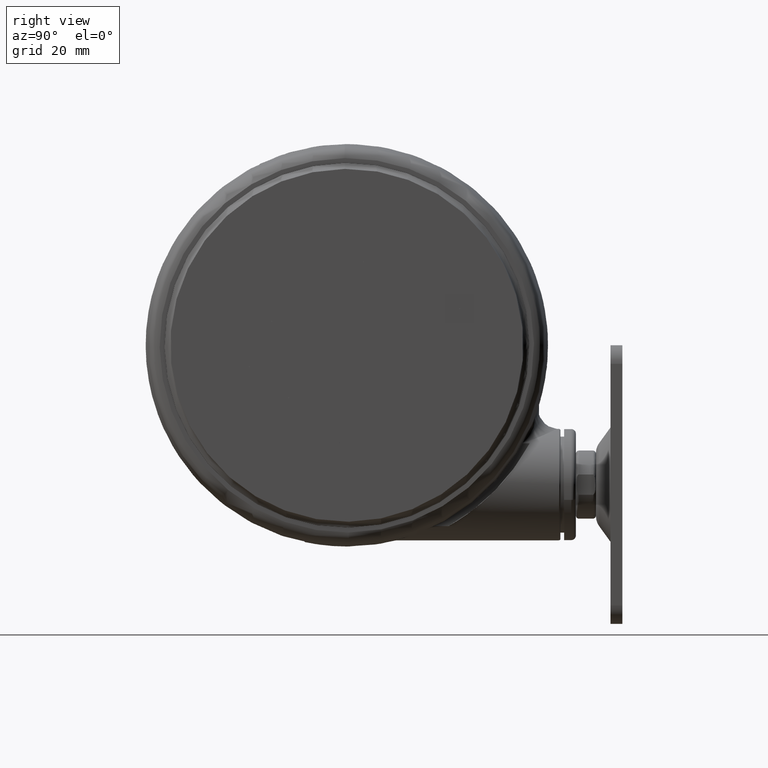
[diagram: clean part render]
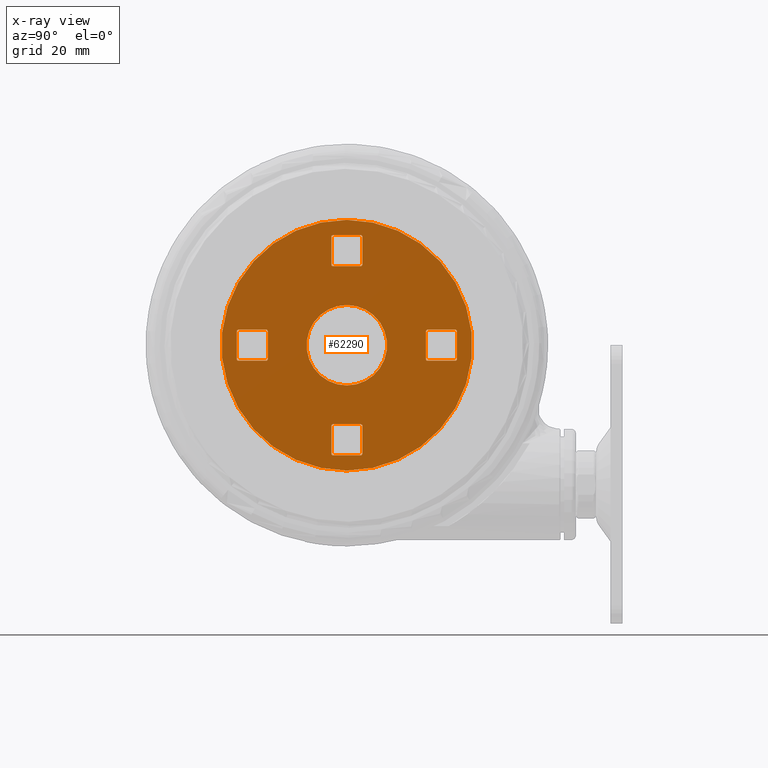
[diagram: x-ray — body ghosted, one internal face saturated and labeled with its STEP entity id]
A machine part, right view, then the same camera in x-ray: the body is ghosted and one INTERNAL B-rep face — a face not visible from any outside direction — is saturated and labeled: STEP entity #62290.
In plain terms, the highlighted planar face has unit normal (1, 0, 0).
Its self-contained STEP definition (entity closure, byte-faithful):
#5 = CARTESIAN_POINT ( 'NONE',  ( -25.49500699571689600, 5.273245517549115700, -64.40000000000011900 ) ) ;
#394 = EDGE_CURVE ( 'NONE', #59196, #18796, #28980, .T. ) ;
#671 = DIRECTION ( 'NONE',  ( 0.9999426917550610100, -0.01070575572499102300, 0.0000000000000000000 ) ) ;
#716 = CARTESIAN_POINT ( 'NONE',  ( -35.49443391326749300, 5.380303074799136300, -64.40000000000011900 ) ) ;
#886 = CARTESIAN_POINT ( 'NONE',  ( 25.60206455296672300, 4.726181400001715700, -64.40000000000011900 ) ) ;
#959 = CARTESIAN_POINT ( 'NONE',  ( -35.09616724677738400, -4.124505374736449100, -64.40000000000011900 ) ) ;
#977 = DIRECTION ( 'NONE',  ( 0.9999426917550609000, -0.01070575572499099900, 0.0000000000000000000 ) ) ;
#1031 = ORIENTED_EDGE ( 'NONE', *, *, #56039, .T. ) ;
#1229 = CARTESIAN_POINT ( 'NONE',  ( -12.99925499281583400, 0.1391748244249053900, -64.40000000000011900 ) ) ;
#1230 = FACE_OUTER_BOUND ( 'NONE', #16724, .T. ) ;
#1296 = AXIS2_PLACEMENT_3D ( 'NONE', #37284, #2865, #43066 ) ;
#1297 = DIRECTION ( 'NONE',  ( -0.0000000000000000000, -0.0000000000000000000, -1.000000000000000000 ) ) ;
#2328 = ORIENTED_EDGE ( 'NONE', *, *, #38204, .F. ) ;
#2360 = CARTESIAN_POINT ( 'NONE',  ( -4.773274171671336500, -25.50035987357933100, -64.40000000000011900 ) ) ;
#2778 = VECTOR ( 'NONE', #67881, 1000.000000000000100 ) ;
#2865 = DIRECTION ( 'NONE',  ( 0.0000000000000000000, 0.0000000000000000000, 1.000000000000000000 ) ) ;
#2921 = LINE ( 'NONE', #50167, #47029 ) ;
#2969 = LINE ( 'NONE', #66662, #62410 ) ;
#3023 = FACE_BOUND ( 'NONE', #39246, .T. ) ;
#3549 = VERTEX_POINT ( 'NONE', #42418 ) ;
#3570 = EDGE_CURVE ( 'NONE', #29897, #55767, #55619, .T. ) ;
#3758 = CARTESIAN_POINT ( 'NONE',  ( 4.619123842751833700, -35.60149147051734500, -64.40000000000011900 ) ) ;
#3989 = LINE ( 'NONE', #61160, #32695 ) ;
#4021 = EDGE_LOOP ( 'NONE', ( #68154, #36903, #67220, #63889, #62978, #7505, #74054, #6029 ) ) ;
#4228 = DIRECTION ( 'NONE',  ( 0.9999426917550610100, -0.01070575572499100000, 0.0000000000000000000 ) ) ;
#4249 = EDGE_CURVE ( 'NONE', #29153, #43707, #31130, .T. ) ;
#4277 = CARTESIAN_POINT ( 'NONE',  ( -25.99497834159442500, 5.278598395411621300, -64.40000000000011900 ) ) ;
#5104 = VERTEX_POINT ( 'NONE', #46723 ) ;
#5221 = EDGE_CURVE ( 'NONE', #21125, #14698, #46332, .T. ) ;
#5729 = DIRECTION ( 'NONE',  ( 0.9999426917550609000, -0.01070575572499100000, 0.0000000000000000000 ) ) ;
#5759 = EDGE_CURVE ( 'NONE', #63019, #5104, #58030, .T. ) ;
#5810 = DIRECTION ( 'NONE',  ( -0.01070575572500147300, -0.9999426917550607900, 0.0000000000000000000 ) ) ;
#5994 = ORIENTED_EDGE ( 'NONE', *, *, #74237, .T. ) ;
#6029 = ORIENTED_EDGE ( 'NONE', *, *, #70926, .T. ) ;
#6523 = PLANE ( 'NONE',  #32958 ) ;
#6620 = DIRECTION ( 'NONE',  ( 0.9999426917550609000, -0.01070575572499099900, 0.0000000000000000000 ) ) ;
#6635 = CARTESIAN_POINT ( 'NONE',  ( 34.99446256738988800, -5.374950196936349100, -64.40000000000011900 ) ) ;
#6702 = CARTESIAN_POINT ( 'NONE',  ( -5.374950196936281600, -34.99446256738991000, -64.40000000000011900 ) ) ;
#6761 = DIRECTION ( 'NONE',  ( 0.9999426917550610100, -0.01070575572499102300, 0.0000000000000000000 ) ) ;
#7174 = ORIENTED_EDGE ( 'NONE', *, *, #30714, .T. ) ;
#7412 = CIRCLE ( 'NONE', #17734, 0.4999999999999993300 ) ;
#7505 = ORIENTED_EDGE ( 'NONE', *, *, #34698, .T. ) ;
#7651 = AXIS2_PLACEMENT_3D ( 'NONE', #73168, #38621, #4228 ) ;
#8510 = CARTESIAN_POINT ( 'NONE',  ( 25.99497834159434000, -5.278598395411399300, -64.40000000000011900 ) ) ;
#8828 = EDGE_CURVE ( 'NONE', #12932, #14698, #56397, .T. ) ;
#9123 = DIRECTION ( 'NONE',  ( 0.01070575572499099900, 0.9999426917550609000, 0.0000000000000000000 ) ) ;
#9268 = VERTEX_POINT ( 'NONE', #1229 ) ;
#9381 = CARTESIAN_POINT ( 'NONE',  ( 4.226210054124212700, -25.59671167510424900, -64.40000000000011900 ) ) ;
#9806 = CARTESIAN_POINT ( 'NONE',  ( 4.778627049533748000, 26.00033121945690300, -64.40000000000011900 ) ) ;
#9955 = EDGE_CURVE ( 'NONE', #74697, #42393, #16603, .T. ) ;
#10168 = VECTOR ( 'NONE', #42824, 1000.000000000000100 ) ;
#10303 = ORIENTED_EDGE ( 'NONE', *, *, #394, .T. ) ;
#12079 = AXIS2_PLACEMENT_3D ( 'NONE', #63368, #28841, #69153 ) ;
#12932 = VERTEX_POINT ( 'NONE', #26979 ) ;
#13098 = VERTEX_POINT ( 'NONE', #6635 ) ;
#13621 = EDGE_CURVE ( 'NONE', #44310, #60854, #24417, .T. ) ;
#14039 = EDGE_CURVE ( 'NONE', #55584, #58517, #35149, .T. ) ;
#14248 = EDGE_CURVE ( 'NONE', #67438, #22301, #66677, .T. ) ;
#14453 = CIRCLE ( 'NONE', #52341, 0.5000000000000002200 ) ;
#14584 = CARTESIAN_POINT ( 'NONE',  ( 25.50035987357930600, -4.773274171671364000, -64.40000000000011900 ) ) ;
#14618 = DIRECTION ( 'NONE',  ( 0.0000000000000000000, 0.0000000000000000000, 1.000000000000000000 ) ) ;
#14698 = VERTEX_POINT ( 'NONE', #52663 ) ;
#14699 = EDGE_CURVE ( 'NONE', #32011, #5104, #66610, .T. ) ;
#14953 = DIRECTION ( 'NONE',  ( 0.0000000000000000000, 0.0000000000000000000, 1.000000000000000000 ) ) ;
#15341 = AXIS2_PLACEMENT_3D ( 'NONE', #74660, #40163, #5729 ) ;
#15552 = CIRCLE ( 'NONE', #29408, 0.4999999999999993300 ) ;
#15607 = DIRECTION ( 'NONE',  ( 0.9999426917550610100, -0.01070575572498926900, 0.0000000000000000000 ) ) ;
#16603 = CIRCLE ( 'NONE', #38584, 0.4999999999999993300 ) ;
#16724 = EDGE_LOOP ( 'NONE', ( #40928, #52136 ) ) ;
#17380 = AXIS2_PLACEMENT_3D ( 'NONE', #49062, #14618, #54879 ) ;
#17734 = AXIS2_PLACEMENT_3D ( 'NONE', #57463, #22943, #63224 ) ;
#18079 = DIRECTION ( 'NONE',  ( 0.0000000000000000000, 0.0000000000000000000, 1.000000000000000000 ) ) ;
#18166 = DIRECTION ( 'NONE',  ( 0.0000000000000000000, 0.0000000000000000000, 1.000000000000000000 ) ) ;
#18673 = AXIS2_PLACEMENT_3D ( 'NONE', #35687, #1297, #41521 ) ;
#18737 = DIRECTION ( 'NONE',  ( 0.0000000000000000000, 0.0000000000000000000, 1.000000000000000000 ) ) ;
#18775 = CARTESIAN_POINT ( 'NONE',  ( -25.59671167510430600, -4.226210054123964000, -64.40000000000011900 ) ) ;
#18796 = VERTEX_POINT ( 'NONE', #45296 ) ;
#19090 = AXIS2_PLACEMENT_3D ( 'NONE', #54047, #19540, #59846 ) ;
#19540 = DIRECTION ( 'NONE',  ( 0.0000000000000000000, 0.0000000000000000000, 1.000000000000000000 ) ) ;
#20104 = CARTESIAN_POINT ( 'NONE',  ( -5.278598395411362000, -25.99497834159436500, -64.40000000000011900 ) ) ;
#20848 = DIRECTION ( 'NONE',  ( -0.9999426917550609000, 0.01070575572499099900, 0.0000000000000000000 ) ) ;
#21125 = VERTEX_POINT ( 'NONE', #46734 ) ;
#21272 = VERTEX_POINT ( 'NONE', #59844 ) ;
#21744 = VERTEX_POINT ( 'NONE', #2360 ) ;
#21833 = CARTESIAN_POINT ( 'NONE',  ( -5.380303074798776600, -35.49443391326744300, -64.40000000000011900 ) ) ;
#21913 = ORIENTED_EDGE ( 'NONE', *, *, #8828, .T. ) ;
#21914 = ORIENTED_EDGE ( 'NONE', *, *, #42790, .T. ) ;
#22188 = EDGE_CURVE ( 'NONE', #41753, #28172, #72011, .T. ) ;
#22294 = DIRECTION ( 'NONE',  ( 0.0000000000000000000, 0.0000000000000000000, 1.000000000000000000 ) ) ;
#22301 = VERTEX_POINT ( 'NONE', #54614 ) ;
#22480 = DIRECTION ( 'NONE',  ( 0.0000000000000000000, 0.0000000000000000000, 1.000000000000000000 ) ) ;
#22604 = EDGE_CURVE ( 'NONE', #32011, #50476, #62053, .T. ) ;
#22943 = DIRECTION ( 'NONE',  ( 0.0000000000000000000, 0.0000000000000000000, 1.000000000000000000 ) ) ;
#23163 = AXIS2_PLACEMENT_3D ( 'NONE', #9806, #50044, #15607 ) ;
#23173 = ORIENTED_EDGE ( 'NONE', *, *, #5221, .F. ) ;
#23465 = CARTESIAN_POINT ( 'NONE',  ( -4.778627049533831400, -26.00033121945686100, -64.40000000000011900 ) ) ;
#23856 = ORIENTED_EDGE ( 'NONE', *, *, #14699, .F. ) ;
#24357 = EDGE_CURVE ( 'NONE', #60472, #67828, #37422, .T. ) ;
#24417 = LINE ( 'NONE', #5, #55076 ) ;
#24495 = VECTOR ( 'NONE', #20848, 1000.000000000000100 ) ;
#24928 = ORIENTED_EDGE ( 'NONE', *, *, #55734, .F. ) ;
#24940 = VECTOR ( 'NONE', #65585, 1000.000000000000100 ) ;
#25307 = CARTESIAN_POINT ( 'NONE',  ( 5.273245517548783600, 25.49500699571687800, -64.40000000000011900 ) ) ;
#26021 = VECTOR ( 'NONE', #35289, 1000.000000000000100 ) ;
#26080 = AXIS2_PLACEMENT_3D ( 'NONE', #31140, #71476, #36921 ) ;
#26086 = ORIENTED_EDGE ( 'NONE', *, *, #28663, .F. ) ;
#26190 = CARTESIAN_POINT ( 'NONE',  ( -25.60206455296680500, -4.726181400001494600, -64.40000000000011900 ) ) ;
#26384 = DIRECTION ( 'NONE',  ( 0.0000000000000000000, 0.0000000000000000000, 1.000000000000000000 ) ) ;
#26979 = CARTESIAN_POINT ( 'NONE',  ( -34.99446256738996700, 5.374950196936630700, -64.40000000000011900 ) ) ;
#27447 = EDGE_CURVE ( 'NONE', #13098, #40952, #65538, .T. ) ;
#28172 = VERTEX_POINT ( 'NONE', #74105 ) ;
#28575 = ORIENTED_EDGE ( 'NONE', *, *, #3570, .F. ) ;
#28663 = EDGE_CURVE ( 'NONE', #59196, #40952, #60894, .T. ) ;
#28768 = ORIENTED_EDGE ( 'NONE', *, *, #64599, .F. ) ;
#28841 = DIRECTION ( 'NONE',  ( 0.0000000000000000000, 0.0000000000000000000, 1.000000000000000000 ) ) ;
#28980 = CIRCLE ( 'NONE', #51092, 0.4999999999999993300 ) ;
#29153 = VERTEX_POINT ( 'NONE', #49248 ) ;
#29239 = DIRECTION ( 'NONE',  ( 0.9999426917550610100, -0.01070575572498926900, 0.0000000000000000000 ) ) ;
#29401 = EDGE_CURVE ( 'NONE', #9268, #66083, #48155, .T. ) ;
#29408 = AXIS2_PLACEMENT_3D ( 'NONE', #959, #41195, #6761 ) ;
#29798 = CIRCLE ( 'NONE', #60553, 0.5000000000000002200 ) ;
#29897 = VERTEX_POINT ( 'NONE', #64265 ) ;
#29981 = FACE_BOUND ( 'NONE', #31315, .T. ) ;
#30638 = EDGE_CURVE ( 'NONE', #3549, #22301, #2969, .T. ) ;
#30714 = EDGE_CURVE ( 'NONE', #29897, #33648, #60613, .T. ) ;
#30956 = EDGE_CURVE ( 'NONE', #21125, #43707, #15552, .T. ) ;
#31130 = LINE ( 'NONE', #26190, #42830 ) ;
#31140 = CARTESIAN_POINT ( 'NONE',  ( 26.00033121945683600, -4.778627049533868700, -64.40000000000011900 ) ) ;
#31315 = EDGE_LOOP ( 'NONE', ( #21914, #55929 ) ) ;
#31641 = AXIS2_PLACEMENT_3D ( 'NONE', #53240, #18737, #59052 ) ;
#31764 = FACE_BOUND ( 'NONE', #53803, .T. ) ;
#31989 = VECTOR ( 'NONE', #50336, 1000.000000000000100 ) ;
#32011 = VERTEX_POINT ( 'NONE', #34175 ) ;
#32231 = CARTESIAN_POINT ( 'NONE',  ( 25.49500699571681000, -5.273245517548894600, -64.40000000000011900 ) ) ;
#32501 = CARTESIAN_POINT ( 'NONE',  ( 26.09668302098175700, 4.220857176261690200, -64.40000000000011900 ) ) ;
#32695 = VECTOR ( 'NONE', #66923, 1000.000000000000100 ) ;
#32808 = EDGE_CURVE ( 'NONE', #74697, #18796, #41368, .T. ) ;
#32958 = AXIS2_PLACEMENT_3D ( 'NONE', #35366, #18079, #977 ) ;
#33562 = FACE_BOUND ( 'NONE', #45459, .T. ) ;
#33611 = ORIENTED_EDGE ( 'NONE', *, *, #73131, .T. ) ;
#33619 = CARTESIAN_POINT ( 'NONE',  ( 5.278598395411279400, 25.99497834159440800, -64.40000000000011900 ) ) ;
#33648 = VERTEX_POINT ( 'NONE', #33619 ) ;
#34175 = CARTESIAN_POINT ( 'NONE',  ( -4.119152496874386700, 35.59613859265489600, -64.40000000000011900 ) ) ;
#34698 = EDGE_CURVE ( 'NONE', #3549, #49949, #29798, .T. ) ;
#35058 = DIRECTION ( 'NONE',  ( 0.0000000000000000000, 0.0000000000000000000, 1.000000000000000000 ) ) ;
#35149 = LINE ( 'NONE', #21833, #2778 ) ;
#35233 = VECTOR ( 'NONE', #38034, 1000.000000000000100 ) ;
#35289 = DIRECTION ( 'NONE',  ( 0.9999426917550609000, -0.01070575572499449200, -0.0000000000000000000 ) ) ;
#35366 = CARTESIAN_POINT ( 'NONE',  ( 0.5781108091494724400, 53.99690535477331100, -64.40000000000011900 ) ) ;
#35635 = CARTESIAN_POINT ( 'NONE',  ( -25.50035987357938800, 4.773274171671585200, -64.40000000000011900 ) ) ;
#35687 = CARTESIAN_POINT ( 'NONE',  ( -4.163336342344337000E-014, 2.081668171172168500E-014, -64.40000000000011900 ) ) ;
#36903 = ORIENTED_EDGE ( 'NONE', *, *, #53829, .T. ) ;
#36921 = DIRECTION ( 'NONE',  ( 0.9999426917550610100, -0.01070575572499102300, 0.0000000000000000000 ) ) ;
#37281 = CARTESIAN_POINT ( 'NONE',  ( -4.226210054124296200, 25.59671167510428800, -64.40000000000011900 ) ) ;
#37284 = CARTESIAN_POINT ( 'NONE',  ( 4.874978851058667600, 34.99981544525244500, -64.40000000000011900 ) ) ;
#37373 = CARTESIAN_POINT ( 'NONE',  ( -35.60149147051740900, -4.619123842751483800, -64.40000000000011900 ) ) ;
#37422 = CIRCLE ( 'NONE', #26080, 0.4999999999999993300 ) ;
#37620 = ORIENTED_EDGE ( 'NONE', *, *, #24357, .T. ) ;
#38034 = DIRECTION ( 'NONE',  ( 0.01070575572499449200, 0.9999426917550609000, 0.0000000000000000000 ) ) ;
#38204 = EDGE_CURVE ( 'NONE', #38644, #50476, #42791, .T. ) ;
#38302 = DIRECTION ( 'NONE',  ( 0.9999426917550610100, -0.01070575572499102300, 0.0000000000000000000 ) ) ;
#38584 = AXIS2_PLACEMENT_3D ( 'NONE', #32501, #72835, #38302 ) ;
#38621 = DIRECTION ( 'NONE',  ( -0.0000000000000000000, -0.0000000000000000000, -1.000000000000000000 ) ) ;
#38644 = VERTEX_POINT ( 'NONE', #41974 ) ;
#39246 = EDGE_LOOP ( 'NONE', ( #24928, #61133, #26086, #10303, #58842, #66256, #43265, #37620 ) ) ;
#39344 = VECTOR ( 'NONE', #58348, 1000.000000000000100 ) ;
#40163 = DIRECTION ( 'NONE',  ( 0.0000000000000000000, 0.0000000000000000000, 1.000000000000000000 ) ) ;
#40928 = ORIENTED_EDGE ( 'NONE', *, *, #22188, .T. ) ;
#40952 = VERTEX_POINT ( 'NONE', #52307 ) ;
#41195 = DIRECTION ( 'NONE',  ( 0.0000000000000000000, 0.0000000000000000000, 1.000000000000000000 ) ) ;
#41368 = LINE ( 'NONE', #886, #26021 ) ;
#41521 = DIRECTION ( 'NONE',  ( 0.9999426917550610100, -0.01070575572499100000, 0.0000000000000000000 ) ) ;
#41753 = VERTEX_POINT ( 'NONE', #60231 ) ;
#41778 = LINE ( 'NONE', #65763, #10168 ) ;
#41974 = CARTESIAN_POINT ( 'NONE',  ( -4.720828522139331800, 26.10203589884431400, -64.40000000000011900 ) ) ;
#42393 = VERTEX_POINT ( 'NONE', #49297 ) ;
#42418 = CARTESIAN_POINT ( 'NONE',  ( 4.720828522139248300, -26.10203589884427100, -64.40000000000011900 ) ) ;
#42790 = EDGE_CURVE ( 'NONE', #66083, #9268, #74011, .T. ) ;
#42791 = LINE ( 'NONE', #49353, #58203 ) ;
#42824 = DIRECTION ( 'NONE',  ( -0.9999426917550609000, 0.01070575572499457900, 0.0000000000000000000 ) ) ;
#42830 = VECTOR ( 'NONE', #55206, 1000.000000000000100 ) ;
#43066 = DIRECTION ( 'NONE',  ( 0.9999426917550610100, -0.01070575572499620800, 0.0000000000000000000 ) ) ;
#43265 = ORIENTED_EDGE ( 'NONE', *, *, #43404, .F. ) ;
#43404 = EDGE_CURVE ( 'NONE', #60472, #42393, #65887, .T. ) ;
#43707 = VERTEX_POINT ( 'NONE', #52159 ) ;
#43923 = ORIENTED_EDGE ( 'NONE', *, *, #5759, .T. ) ;
#44310 = VERTEX_POINT ( 'NONE', #35635 ) ;
#44547 = EDGE_CURVE ( 'NONE', #28172, #41753, #56767, .T. ) ;
#44783 = CARTESIAN_POINT ( 'NONE',  ( 35.60149147051732400, 4.619123842751776900, -64.40000000000011900 ) ) ;
#44845 = CARTESIAN_POINT ( 'NONE',  ( 5.374950196936198100, 34.99446256738995200, -64.40000000000011900 ) ) ;
#45296 = CARTESIAN_POINT ( 'NONE',  ( 35.10152012463979800, 4.624476720614271800, -64.40000000000011900 ) ) ;
#45459 = EDGE_LOOP ( 'NONE', ( #28768, #43923, #23856, #73198, #2328, #5994, #28575, #7174 ) ) ;
#46153 = DIRECTION ( 'NONE',  ( 0.9999426917550610100, -0.01070575572499102300, 0.0000000000000000000 ) ) ;
#46332 = LINE ( 'NONE', #37373, #63480 ) ;
#46723 = CARTESIAN_POINT ( 'NONE',  ( 4.880331728921162500, 35.49978679112997100, -64.40000000000011900 ) ) ;
#46734 = CARTESIAN_POINT ( 'NONE',  ( -35.59613859265491000, -4.119152496873948800, -64.40000000000011900 ) ) ;
#46834 = CARTESIAN_POINT ( 'NONE',  ( -4.619123842751917200, 35.60149147051738800, -64.40000000000011900 ) ) ;
#47029 = VECTOR ( 'NONE', #55999, 1000.000000000000100 ) ;
#47471 = AXIS2_PLACEMENT_3D ( 'NONE', #49393, #14953, #55220 ) ;
#47780 = CIRCLE ( 'NONE', #51781, 0.4999999999999993300 ) ;
#48155 = CIRCLE ( 'NONE', #15341, 13.00000000000000200 ) ;
#49062 = CARTESIAN_POINT ( 'NONE',  ( -34.99981544525246600, 4.874978851059099200, -64.40000000000011900 ) ) ;
#49248 = CARTESIAN_POINT ( 'NONE',  ( -26.10203589884433500, -4.720828522138999600, -64.40000000000011900 ) ) ;
#49297 = CARTESIAN_POINT ( 'NONE',  ( 25.59671167510422800, 4.226210054124180700, -64.40000000000011900 ) ) ;
#49353 = CARTESIAN_POINT ( 'NONE',  ( -4.726181400001826700, 25.60206455296678400, -64.40000000000011900 ) ) ;
#49393 = CARTESIAN_POINT ( 'NONE',  ( -4.874978851058751100, -34.99981544525240200, -64.40000000000011900 ) ) ;
#49428 = CARTESIAN_POINT ( 'NONE',  ( 12.99925499281575200, -0.1391748244248622000, -64.40000000000011900 ) ) ;
#49487 = VECTOR ( 'NONE', #6620, 1000.000000000000100 ) ;
#49541 = DIRECTION ( 'NONE',  ( -0.01070575572499099900, -0.9999426917550609000, 0.0000000000000000000 ) ) ;
#49949 = VERTEX_POINT ( 'NONE', #9381 ) ;
#50044 = DIRECTION ( 'NONE',  ( 0.0000000000000000000, 0.0000000000000000000, 1.000000000000000000 ) ) ;
#50167 = CARTESIAN_POINT ( 'NONE',  ( 5.380303074798694000, 35.49443391326747800, -64.40000000000011900 ) ) ;
#50336 = DIRECTION ( 'NONE',  ( -0.01070575572499449200, -0.9999426917550609000, 0.0000000000000000000 ) ) ;
#50476 = VERTEX_POINT ( 'NONE', #62621 ) ;
#51092 = AXIS2_PLACEMENT_3D ( 'NONE', #70820, #22294, #46153 ) ;
#51781 = AXIS2_PLACEMENT_3D ( 'NONE', #69609, #35058, #671 ) ;
#52136 = ORIENTED_EDGE ( 'NONE', *, *, #44547, .T. ) ;
#52159 = CARTESIAN_POINT ( 'NONE',  ( -35.10152012463987600, -4.624476720613979600, -64.40000000000011900 ) ) ;
#52307 = CARTESIAN_POINT ( 'NONE',  ( 35.49978679112990700, -4.880331728921313500, -64.40000000000011900 ) ) ;
#52341 = AXIS2_PLACEMENT_3D ( 'NONE', #60942, #26384, #66692 ) ;
#52648 = CARTESIAN_POINT ( 'NONE',  ( 4.220857176261717700, -26.09668302098177900, -64.40000000000011900 ) ) ;
#52663 = CARTESIAN_POINT ( 'NONE',  ( -35.49978679112999200, 4.880331728921604800, -64.40000000000011900 ) ) ;
#53240 = CARTESIAN_POINT ( 'NONE',  ( 4.124505374736798100, -35.09616724677732700, -64.40000000000011900 ) ) ;
#53803 = EDGE_LOOP ( 'NONE', ( #68662, #21913, #23173, #65004, #64791, #1031, #58122, #33611 ) ) ;
#53829 = EDGE_CURVE ( 'NONE', #55584, #21272, #60585, .T. ) ;
#54047 = CARTESIAN_POINT ( 'NONE',  ( -4.163336342344337000E-014, 2.081668171172168500E-014, -64.40000000000011900 ) ) ;
#54614 = CARTESIAN_POINT ( 'NONE',  ( 4.624476720614329600, -35.10152012463981900, -64.40000000000011900 ) ) ;
#54703 = LINE ( 'NONE', #716, #39344 ) ;
#54803 = CARTESIAN_POINT ( 'NONE',  ( 26.10203589884425300, 4.720828522139220800, -64.40000000000011900 ) ) ;
#54879 = DIRECTION ( 'NONE',  ( 0.9999426917550610100, -0.01070575572499102300, 0.0000000000000000000 ) ) ;
#55076 = VECTOR ( 'NONE', #5810, 1000.000000000000100 ) ;
#55206 = DIRECTION ( 'NONE',  ( -0.9999426917550607900, 0.01070575572500147300, 0.0000000000000000000 ) ) ;
#55220 = DIRECTION ( 'NONE',  ( 0.9999426917550610100, -0.01070575572499620800, 0.0000000000000000000 ) ) ;
#55584 = VERTEX_POINT ( 'NONE', #6702 ) ;
#55619 = LINE ( 'NONE', #25307, #24940 ) ;
#55734 = EDGE_CURVE ( 'NONE', #13098, #67828, #41778, .T. ) ;
#55767 = VERTEX_POINT ( 'NONE', #37281 ) ;
#55929 = ORIENTED_EDGE ( 'NONE', *, *, #29401, .T. ) ;
#55999 = DIRECTION ( 'NONE',  ( -0.01070575572499108700, -0.9999426917550609000, 0.0000000000000000000 ) ) ;
#56039 = EDGE_CURVE ( 'NONE', #29153, #60854, #7412, .T. ) ;
#56278 = CARTESIAN_POINT ( 'NONE',  ( 35.59613859265482500, 4.119152496874241000, -64.40000000000011900 ) ) ;
#56397 = CIRCLE ( 'NONE', #17380, 0.4999999999999993300 ) ;
#56767 = CIRCLE ( 'NONE', #7651, 40.50000000000000000 ) ;
#56997 = CARTESIAN_POINT ( 'NONE',  ( 34.99981544525238100, -4.874978851058818600, -64.40000000000011900 ) ) ;
#57463 = CARTESIAN_POINT ( 'NONE',  ( -26.09668302098183500, -4.220857176261463700, -64.40000000000011900 ) ) ;
#58030 = CIRCLE ( 'NONE', #1296, 0.5000000000000002200 ) ;
#58122 = ORIENTED_EDGE ( 'NONE', *, *, #13621, .F. ) ;
#58203 = VECTOR ( 'NONE', #9123, 1000.000000000000100 ) ;
#58348 = DIRECTION ( 'NONE',  ( 0.9999426917550607900, -0.01070575572500156000, -0.0000000000000000000 ) ) ;
#58447 = DIRECTION ( 'NONE',  ( 0.9999426917550610100, -0.01070575572498926900, 0.0000000000000000000 ) ) ;
#58517 = VERTEX_POINT ( 'NONE', #20104 ) ;
#58816 = EDGE_CURVE ( 'NONE', #12932, #60584, #54703, .T. ) ;
#58842 = ORIENTED_EDGE ( 'NONE', *, *, #32808, .F. ) ;
#59052 = DIRECTION ( 'NONE',  ( 0.9999426917550610100, -0.01070575572499620800, 0.0000000000000000000 ) ) ;
#59196 = VERTEX_POINT ( 'NONE', #56278 ) ;
#59844 = CARTESIAN_POINT ( 'NONE',  ( -4.880331728921246000, -35.49978679112992800, -64.40000000000011900 ) ) ;
#59846 = DIRECTION ( 'NONE',  ( 0.9999426917550609000, -0.01070575572499100000, 0.0000000000000000000 ) ) ;
#60231 = CARTESIAN_POINT ( 'NONE',  ( 40.49767901607992800, -0.4335831068621147100, -64.40000000000011900 ) ) ;
#60472 = VERTEX_POINT ( 'NONE', #14584 ) ;
#60553 = AXIS2_PLACEMENT_3D ( 'NONE', #52648, #18166, #58447 ) ;
#60584 = VERTEX_POINT ( 'NONE', #4277 ) ;
#60585 = CIRCLE ( 'NONE', #47471, 0.5000000000000002200 ) ;
#60613 = CIRCLE ( 'NONE', #23163, 0.5000000000000002200 ) ;
#60655 = FACE_BOUND ( 'NONE', #4021, .T. ) ;
#60854 = VERTEX_POINT ( 'NONE', #18775 ) ;
#60894 = LINE ( 'NONE', #44783, #31989 ) ;
#60942 = CARTESIAN_POINT ( 'NONE',  ( -4.220857176261801200, 26.09668302098181800, -64.40000000000011900 ) ) ;
#61133 = ORIENTED_EDGE ( 'NONE', *, *, #27447, .T. ) ;
#61160 = CARTESIAN_POINT ( 'NONE',  ( -5.273245517548867100, -25.49500699571683500, -64.40000000000011900 ) ) ;
#61995 = EDGE_CURVE ( 'NONE', #21744, #49949, #3989, .T. ) ;
#62053 = CIRCLE ( 'NONE', #12079, 0.5000000000000002200 ) ;
#62290 = ADVANCED_FACE ( 'NONE', ( #1230, #31764, #60655, #3023, #33562, #29981 ), #6523, .F. ) ;
#62410 = VECTOR ( 'NONE', #49541, 1000.000000000000100 ) ;
#62621 = CARTESIAN_POINT ( 'NONE',  ( -4.624476720614412200, 35.10152012463985500, -64.40000000000011900 ) ) ;
#62753 = DIRECTION ( 'NONE',  ( 0.9999426917550610100, -0.01070575572499102300, 0.0000000000000000000 ) ) ;
#62940 = AXIS2_PLACEMENT_3D ( 'NONE', #56997, #22480, #62753 ) ;
#62978 = ORIENTED_EDGE ( 'NONE', *, *, #30638, .F. ) ;
#63019 = VERTEX_POINT ( 'NONE', #44845 ) ;
#63224 = DIRECTION ( 'NONE',  ( 0.9999426917550610100, -0.01070575572499102300, 0.0000000000000000000 ) ) ;
#63368 = CARTESIAN_POINT ( 'NONE',  ( -4.124505374736881600, 35.09616724677737000, -64.40000000000011900 ) ) ;
#63480 = VECTOR ( 'NONE', #66108, 1000.000000000000100 ) ;
#63748 = DIRECTION ( 'NONE',  ( 0.0000000000000000000, 0.0000000000000000000, 1.000000000000000000 ) ) ;
#63889 = ORIENTED_EDGE ( 'NONE', *, *, #14248, .T. ) ;
#64265 = CARTESIAN_POINT ( 'NONE',  ( 4.773274171671253000, 25.50035987357937400, -64.40000000000011900 ) ) ;
#64599 = EDGE_CURVE ( 'NONE', #63019, #33648, #2921, .T. ) ;
#64791 = ORIENTED_EDGE ( 'NONE', *, *, #4249, .F. ) ;
#65004 = ORIENTED_EDGE ( 'NONE', *, *, #30956, .T. ) ;
#65185 = CIRCLE ( 'NONE', #69964, 0.5000000000000002200 ) ;
#65538 = CIRCLE ( 'NONE', #62940, 0.4999999999999993300 ) ;
#65584 = EDGE_CURVE ( 'NONE', #67438, #21272, #72261, .T. ) ;
#65585 = DIRECTION ( 'NONE',  ( -0.9999426917550609000, 0.01070575572499099900, 0.0000000000000000000 ) ) ;
#65763 = CARTESIAN_POINT ( 'NONE',  ( 35.49443391326742200, -5.380303074798845000, -64.40000000000011900 ) ) ;
#65887 = LINE ( 'NONE', #32231, #35233 ) ;
#66083 = VERTEX_POINT ( 'NONE', #49428 ) ;
#66108 = DIRECTION ( 'NONE',  ( 0.01070575572500147300, 0.9999426917550607900, 0.0000000000000000000 ) ) ;
#66256 = ORIENTED_EDGE ( 'NONE', *, *, #9955, .T. ) ;
#66610 = LINE ( 'NONE', #46834, #49487 ) ;
#66662 = CARTESIAN_POINT ( 'NONE',  ( 4.726181400001744100, -25.60206455296674100, -64.40000000000011900 ) ) ;
#66677 = CIRCLE ( 'NONE', #31641, 0.5000000000000002200 ) ;
#66692 = DIRECTION ( 'NONE',  ( 0.9999426917550610100, -0.01070575572498926900, 0.0000000000000000000 ) ) ;
#66923 = DIRECTION ( 'NONE',  ( 0.9999426917550609000, -0.01070575572499099900, 0.0000000000000000000 ) ) ;
#67220 = ORIENTED_EDGE ( 'NONE', *, *, #65584, .F. ) ;
#67438 = VERTEX_POINT ( 'NONE', #73514 ) ;
#67828 = VERTEX_POINT ( 'NONE', #8510 ) ;
#67881 = DIRECTION ( 'NONE',  ( 0.01070575572499108700, 0.9999426917550609000, 0.0000000000000000000 ) ) ;
#68154 = ORIENTED_EDGE ( 'NONE', *, *, #14039, .F. ) ;
#68662 = ORIENTED_EDGE ( 'NONE', *, *, #58816, .F. ) ;
#69153 = DIRECTION ( 'NONE',  ( 0.9999426917550610100, -0.01070575572499620800, 0.0000000000000000000 ) ) ;
#69609 = CARTESIAN_POINT ( 'NONE',  ( -26.00033121945692100, 4.778627049534090800, -64.40000000000011900 ) ) ;
#69964 = AXIS2_PLACEMENT_3D ( 'NONE', #23465, #63748, #29239 ) ;
#70820 = CARTESIAN_POINT ( 'NONE',  ( 35.09616724677729800, 4.124505374736741300, -64.40000000000011900 ) ) ;
#70926 = EDGE_CURVE ( 'NONE', #21744, #58517, #65185, .T. ) ;
#71476 = DIRECTION ( 'NONE',  ( 0.0000000000000000000, 0.0000000000000000000, 1.000000000000000000 ) ) ;
#72011 = CIRCLE ( 'NONE', #18673, 40.50000000000000000 ) ;
#72261 = LINE ( 'NONE', #3758, #24495 ) ;
#72835 = DIRECTION ( 'NONE',  ( 0.0000000000000000000, 0.0000000000000000000, 1.000000000000000000 ) ) ;
#73131 = EDGE_CURVE ( 'NONE', #44310, #60584, #47780, .T. ) ;
#73168 = CARTESIAN_POINT ( 'NONE',  ( -4.163336342344337000E-014, 2.081668171172168500E-014, -64.40000000000011900 ) ) ;
#73198 = ORIENTED_EDGE ( 'NONE', *, *, #22604, .T. ) ;
#73514 = CARTESIAN_POINT ( 'NONE',  ( 4.119152496874303200, -35.59613859265485300, -64.40000000000011900 ) ) ;
#74011 = CIRCLE ( 'NONE', #19090, 13.00000000000000200 ) ;
#74054 = ORIENTED_EDGE ( 'NONE', *, *, #61995, .F. ) ;
#74105 = CARTESIAN_POINT ( 'NONE',  ( -40.49767901608001400, 0.4335831068621613400, -64.40000000000011900 ) ) ;
#74237 = EDGE_CURVE ( 'NONE', #38644, #55767, #14453, .T. ) ;
#74660 = CARTESIAN_POINT ( 'NONE',  ( -4.163336342344337000E-014, 2.081668171172168500E-014, -64.40000000000011900 ) ) ;
#74697 = VERTEX_POINT ( 'NONE', #54803 ) ;